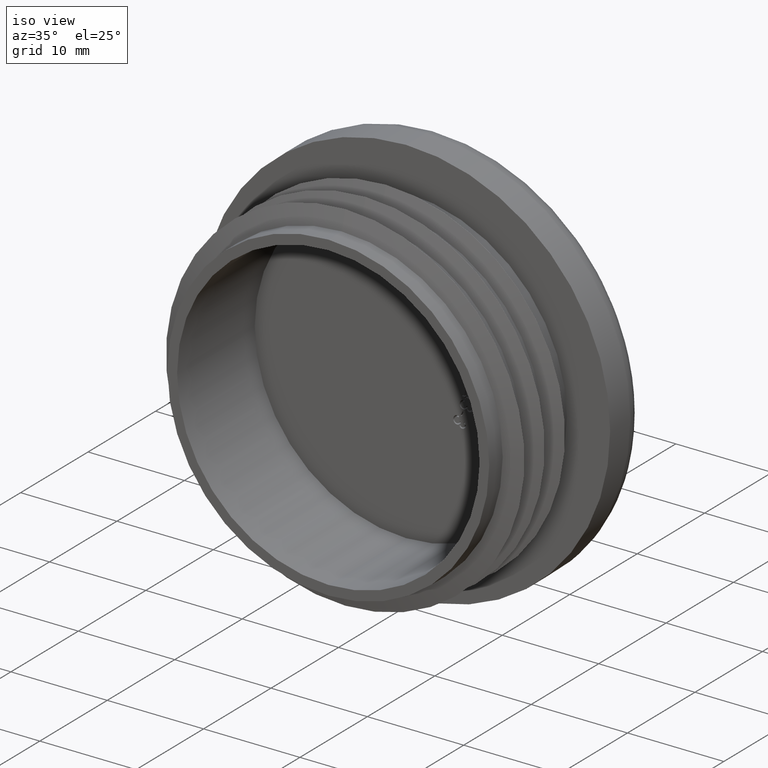
[diagram: clean part render]
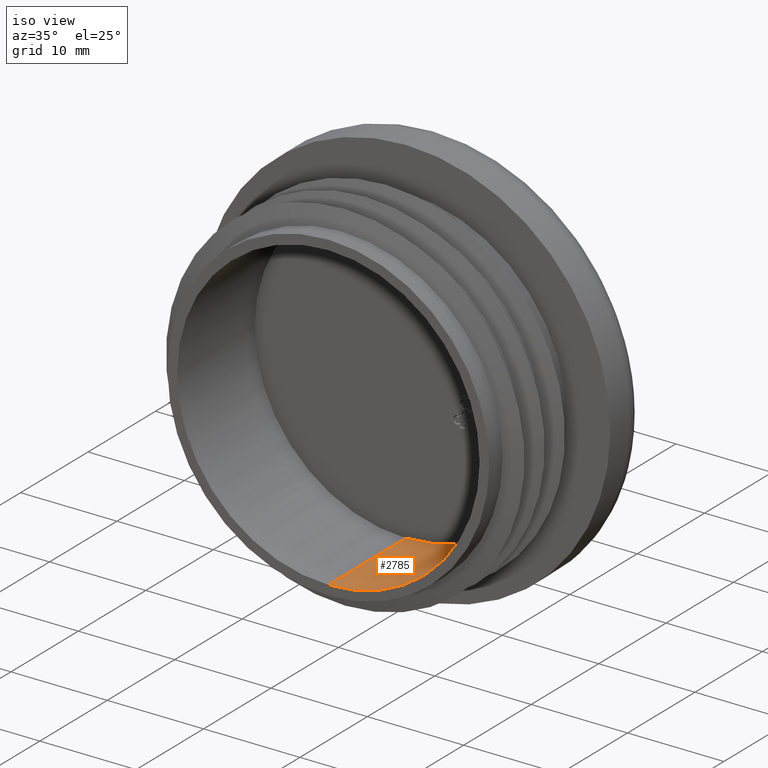
[diagram: same view with one face highlighted and labeled with its STEP entity id]
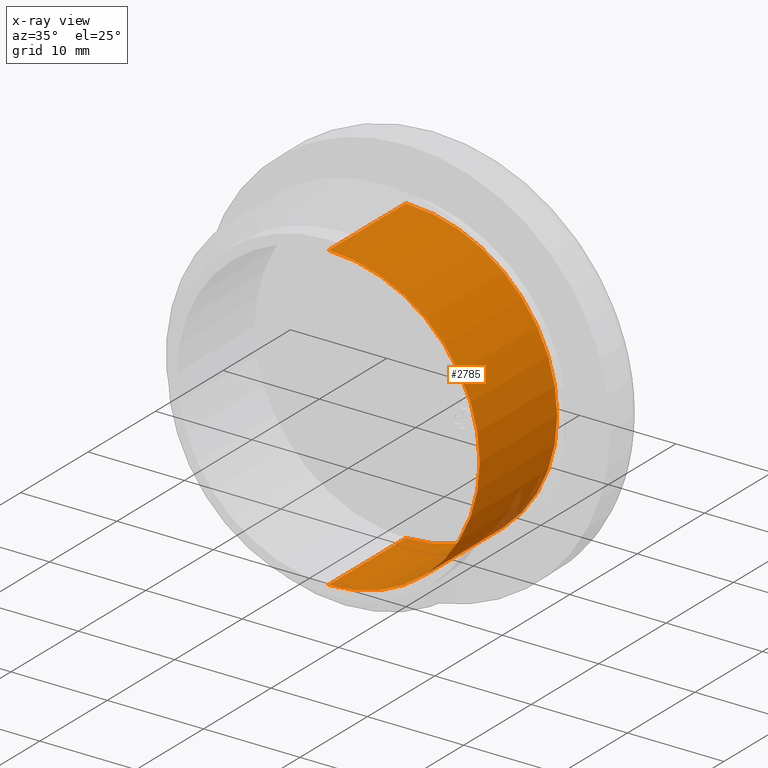
[diagram: x-ray of the same camera — body ghosted, the highlighted face saturated]
A machine part, iso view. The second image highlights one B-rep face of the part: STEP entity #2785.
The next image is the same camera in x-ray: the body ghosted, the highlighted face saturated — about 2% of this face is hidden behind the body in this view.
In plain terms, the highlighted cylindrical surface (partial cylindrical patch) has radius 15.7 mm, axis along (-0, 1, -0).
Its self-contained STEP definition (entity closure, byte-faithful):
#109 = AXIS2_PLACEMENT_3D ( 'NONE', #8095, #8084, #8065 ) ;
#358 = CARTESIAN_POINT ( 'NONE',  ( 0.0000000000000000000, -11.50000000000000000, 0.0000000000000000000 ) ) ;
#396 = DIRECTION ( 'NONE',  ( -0.0000000000000000000, 1.000000000000000000, -0.0000000000000000000 ) ) ;
#488 = ORIENTED_EDGE ( 'NONE', *, *, #6070, .T. ) ;
#992 = LINE ( 'NONE', #2826, #3267 ) ;
#1286 = FACE_OUTER_BOUND ( 'NONE', #6461, .T. ) ;
#1355 = EDGE_CURVE ( 'NONE', #2493, #7878, #4150, .T. ) ;
#1755 = AXIS2_PLACEMENT_3D ( 'NONE', #358, #396, #10121 ) ;
#2450 = CIRCLE ( 'NONE', #9310, 15.69999999999999900 ) ;
#2493 = VERTEX_POINT ( 'NONE', #4173 ) ;
#2785 = ADVANCED_FACE ( 'NONE', ( #1286 ), #5497, .F. ) ;
#2826 = CARTESIAN_POINT ( 'NONE',  ( 0.0000000000000000000, -11.50000000000000000, 15.69999999999999900 ) ) ;
#3267 = VECTOR ( 'NONE', #10035, 1000.000000000000000 ) ;
#3523 = ORIENTED_EDGE ( 'NONE', *, *, #1355, .F. ) ;
#4150 = CIRCLE ( 'NONE', #109, 15.69999999999999900 ) ;
#4173 = CARTESIAN_POINT ( 'NONE',  ( 1.922695474661344300E-015, 0.0000000000000000000, -15.69999999999999900 ) ) ;
#4745 = EDGE_CURVE ( 'NONE', #9982, #2493, #5315, .T. ) ;
#5049 = DIRECTION ( 'NONE',  ( 0.0000000000000000000, -1.000000000000000000, 0.0000000000000000000 ) ) ;
#5315 = LINE ( 'NONE', #7208, #9486 ) ;
#5497 = CYLINDRICAL_SURFACE ( 'NONE', #1755, 15.69999999999999900 ) ;
#6070 = EDGE_CURVE ( 'NONE', #6804, #7878, #992, .T. ) ;
#6427 = CARTESIAN_POINT ( 'NONE',  ( 0.0000000000000000000, 0.0000000000000000000, 15.69999999999999900 ) ) ;
#6461 = EDGE_LOOP ( 'NONE', ( #10350, #8611, #488, #3523 ) ) ;
#6804 = VERTEX_POINT ( 'NONE', #8568 ) ;
#7207 = EDGE_CURVE ( 'NONE', #9982, #6804, #2450, .T. ) ;
#7208 = CARTESIAN_POINT ( 'NONE',  ( 1.922695474661344300E-015, -11.50000000000000000, -15.69999999999999900 ) ) ;
#7878 = VERTEX_POINT ( 'NONE', #6427 ) ;
#7967 = DIRECTION ( 'NONE',  ( -0.0000000000000000000, 1.000000000000000000, -0.0000000000000000000 ) ) ;
#8065 = DIRECTION ( 'NONE',  ( 0.0000000000000000000, 0.0000000000000000000, 1.000000000000000000 ) ) ;
#8084 = DIRECTION ( 'NONE',  ( -0.0000000000000000000, -1.000000000000000000, -0.0000000000000000000 ) ) ;
#8095 = CARTESIAN_POINT ( 'NONE',  ( 0.0000000000000000000, 0.0000000000000000000, 0.0000000000000000000 ) ) ;
#8568 = CARTESIAN_POINT ( 'NONE',  ( 0.0000000000000000000, -11.50000000000000000, 15.69999999999999900 ) ) ;
#8611 = ORIENTED_EDGE ( 'NONE', *, *, #7207, .T. ) ;
#9310 = AXIS2_PLACEMENT_3D ( 'NONE', #9757, #5049, #10479 ) ;
#9486 = VECTOR ( 'NONE', #7967, 1000.000000000000000 ) ;
#9646 = CARTESIAN_POINT ( 'NONE',  ( 1.922695474661344300E-015, -11.50000000000000000, -15.69999999999999900 ) ) ;
#9757 = CARTESIAN_POINT ( 'NONE',  ( 0.0000000000000000000, -11.50000000000000000, 0.0000000000000000000 ) ) ;
#9982 = VERTEX_POINT ( 'NONE', #9646 ) ;
#10035 = DIRECTION ( 'NONE',  ( -0.0000000000000000000, 1.000000000000000000, -0.0000000000000000000 ) ) ;
#10121 = DIRECTION ( 'NONE',  ( 0.0000000000000000000, 0.0000000000000000000, 1.000000000000000000 ) ) ;
#10350 = ORIENTED_EDGE ( 'NONE', *, *, #4745, .F. ) ;
#10479 = DIRECTION ( 'NONE',  ( 0.0000000000000000000, 0.0000000000000000000, -1.000000000000000000 ) ) ;